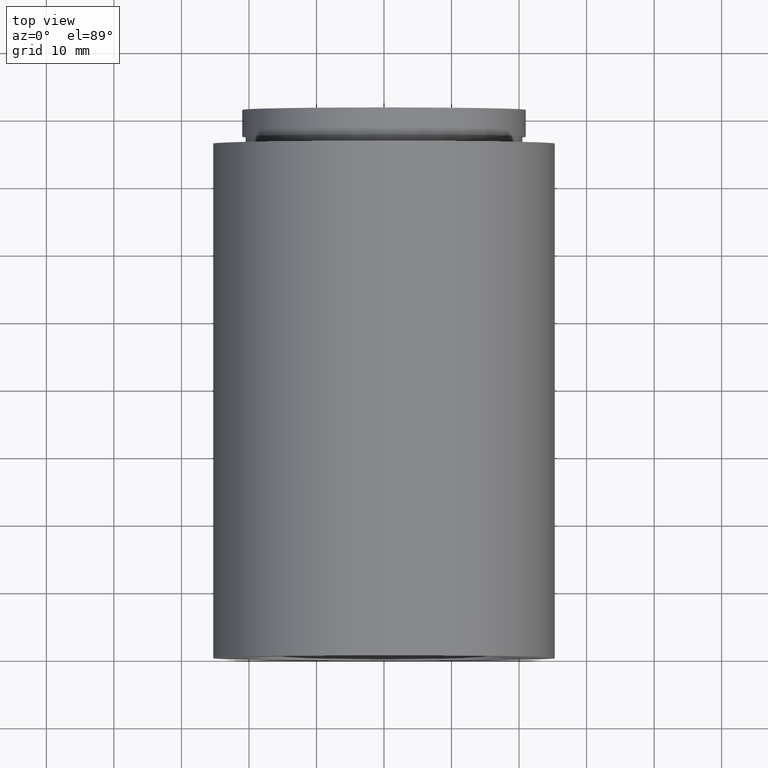
[diagram: clean part render]
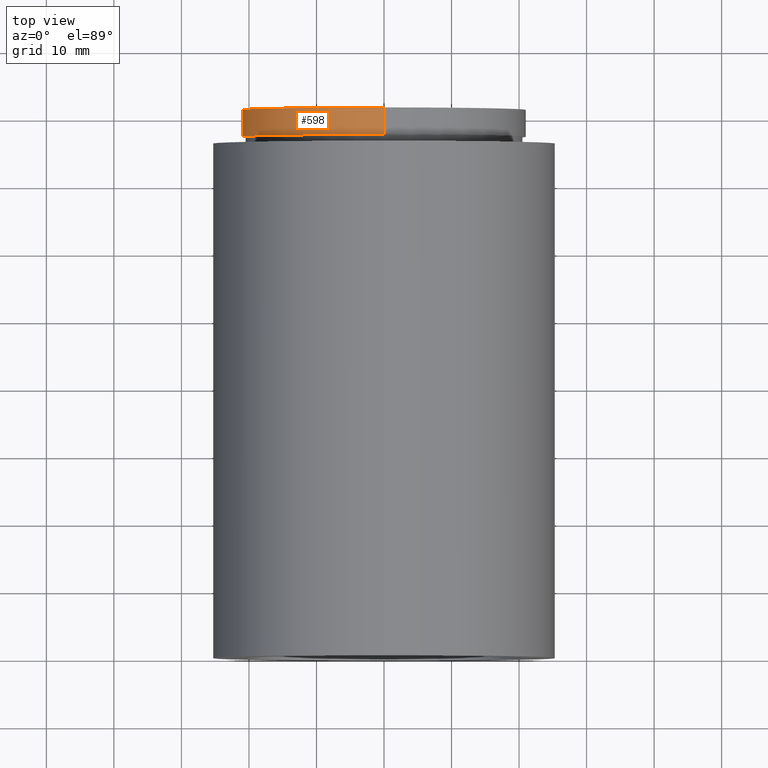
[diagram: same view with one face highlighted and labeled with its STEP entity id]
A machine part, top view. The second image highlights one B-rep face of the part: STEP entity #598.
In plain terms, the highlighted cylindrical surface (partial cylindrical patch) has radius 21 mm, axis along (-0, 1, -0).
Its self-contained STEP definition (entity closure, byte-faithful):
#12 = FACE_OUTER_BOUND ( 'NONE', #284, .T. ) ;
#15 = CARTESIAN_POINT ( 'NONE',  ( 2.571758278209443200E-015, 161.3761669434274500, -21.00000000000001100 ) ) ;
#32 = CARTESIAN_POINT ( 'NONE',  ( 2.571758278209443200E-015, 81.19999999999998900, -21.00000000000001100 ) ) ;
#35 = AXIS2_PLACEMENT_3D ( 'NONE', #142, #365, #369 ) ;
#52 = ORIENTED_EDGE ( 'NONE', *, *, #185, .T. ) ;
#59 = AXIS2_PLACEMENT_3D ( 'NONE', #354, #356, #453 ) ;
#65 = CARTESIAN_POINT ( 'NONE',  ( 0.0000000000000000000, 77.19999999999998900, 21.00000000000001100 ) ) ;
#71 = LINE ( 'NONE', #81, #82 ) ;
#81 = CARTESIAN_POINT ( 'NONE',  ( 0.0000000000000000000, 161.3761669434274500, 21.00000000000001100 ) ) ;
#82 = VECTOR ( 'NONE', #613, 1000.000000000000000 ) ;
#86 = CARTESIAN_POINT ( 'NONE',  ( 0.0000000000000000000, 81.19999999999998900, 21.00000000000001100 ) ) ;
#136 = CIRCLE ( 'NONE', #59, 21.00000000000001100 ) ;
#142 = CARTESIAN_POINT ( 'NONE',  ( 0.0000000000000000000, 161.3761669434274500, 0.0000000000000000000 ) ) ;
#155 = AXIS2_PLACEMENT_3D ( 'NONE', #169, #316, #407 ) ;
#169 = CARTESIAN_POINT ( 'NONE',  ( 0.0000000000000000000, 81.19999999999998900, 0.0000000000000000000 ) ) ;
#185 = EDGE_CURVE ( 'NONE', #406, #296, #136, .T. ) ;
#209 = EDGE_CURVE ( 'NONE', #301, #370, #443, .T. ) ;
#270 = DIRECTION ( 'NONE',  ( -0.0000000000000000000, 1.000000000000000000, -0.0000000000000000000 ) ) ;
#284 = EDGE_LOOP ( 'NONE', ( #375, #52, #384, #430 ) ) ;
#296 = VERTEX_POINT ( 'NONE', #65 ) ;
#301 = VERTEX_POINT ( 'NONE', #32 ) ;
#316 = DIRECTION ( 'NONE',  ( -0.0000000000000000000, 1.000000000000000000, -0.0000000000000000000 ) ) ;
#354 = CARTESIAN_POINT ( 'NONE',  ( 0.0000000000000000000, 77.19999999999998900, 0.0000000000000000000 ) ) ;
#356 = DIRECTION ( 'NONE',  ( -0.0000000000000000000, 1.000000000000000000, -0.0000000000000000000 ) ) ;
#365 = DIRECTION ( 'NONE',  ( -0.0000000000000000000, 1.000000000000000000, -0.0000000000000000000 ) ) ;
#369 = DIRECTION ( 'NONE',  ( 0.0000000000000000000, 0.0000000000000000000, 1.000000000000000000 ) ) ;
#370 = VERTEX_POINT ( 'NONE', #86 ) ;
#375 = ORIENTED_EDGE ( 'NONE', *, *, #508, .F. ) ;
#384 = ORIENTED_EDGE ( 'NONE', *, *, #597, .T. ) ;
#406 = VERTEX_POINT ( 'NONE', #574 ) ;
#407 = DIRECTION ( 'NONE',  ( 0.0000000000000000000, 0.0000000000000000000, 1.000000000000000000 ) ) ;
#430 = ORIENTED_EDGE ( 'NONE', *, *, #209, .F. ) ;
#443 = CIRCLE ( 'NONE', #155, 21.00000000000001100 ) ;
#453 = DIRECTION ( 'NONE',  ( 0.0000000000000000000, 0.0000000000000000000, 1.000000000000000000 ) ) ;
#508 = EDGE_CURVE ( 'NONE', #406, #301, #531, .T. ) ;
#531 = LINE ( 'NONE', #15, #578 ) ;
#574 = CARTESIAN_POINT ( 'NONE',  ( 2.571758278209443200E-015, 77.19999999999998900, -21.00000000000001100 ) ) ;
#578 = VECTOR ( 'NONE', #270, 1000.000000000000000 ) ;
#597 = EDGE_CURVE ( 'NONE', #296, #370, #71, .T. ) ;
#598 = ADVANCED_FACE ( 'NONE', ( #12 ), #615, .T. ) ;
#613 = DIRECTION ( 'NONE',  ( -0.0000000000000000000, 1.000000000000000000, -0.0000000000000000000 ) ) ;
#615 = CYLINDRICAL_SURFACE ( 'NONE', #35, 21.00000000000001100 ) ;